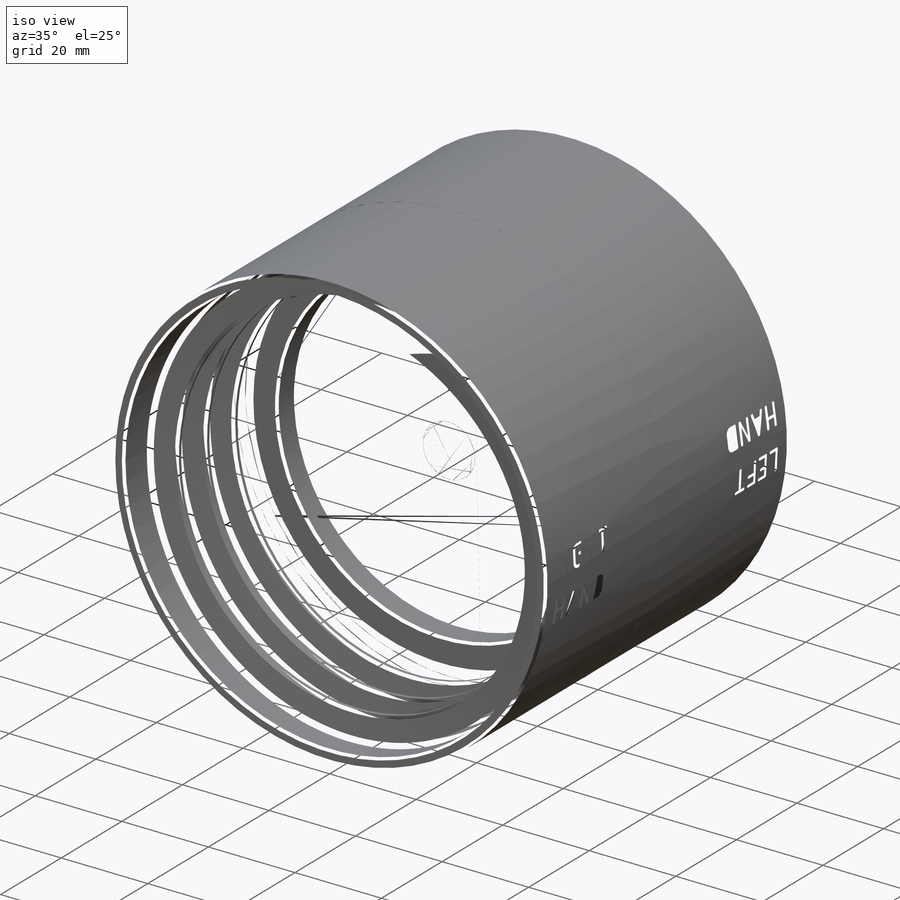
[diagram: iso view]
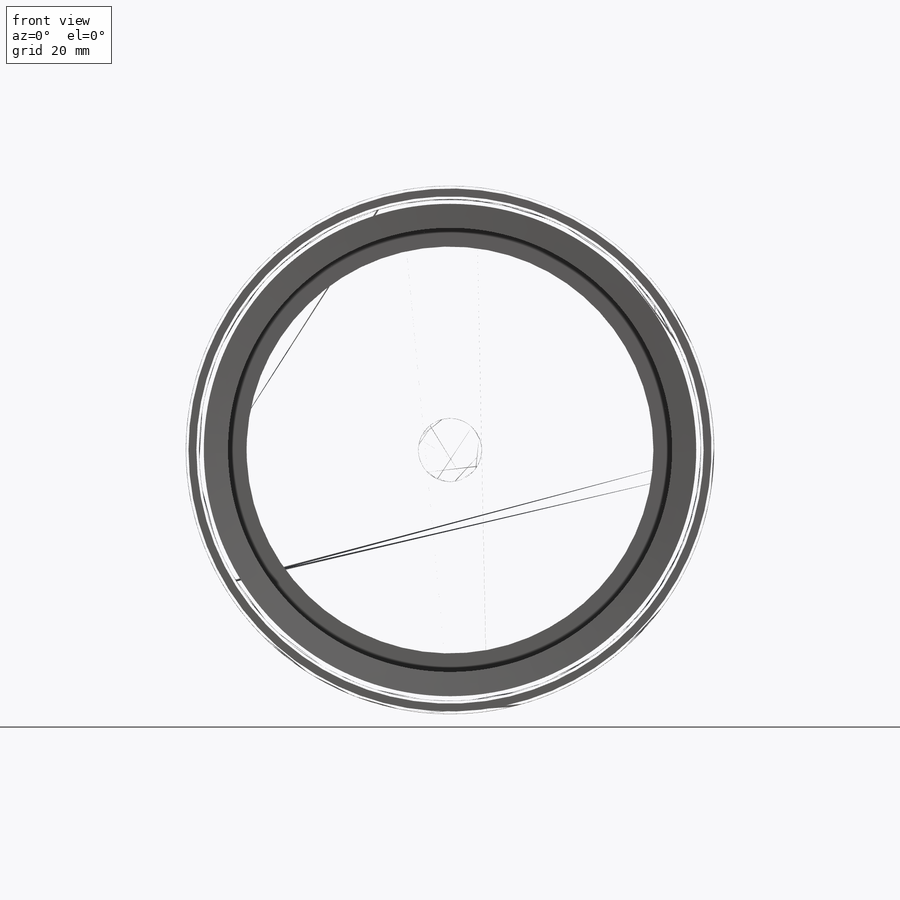
[diagram: front view]
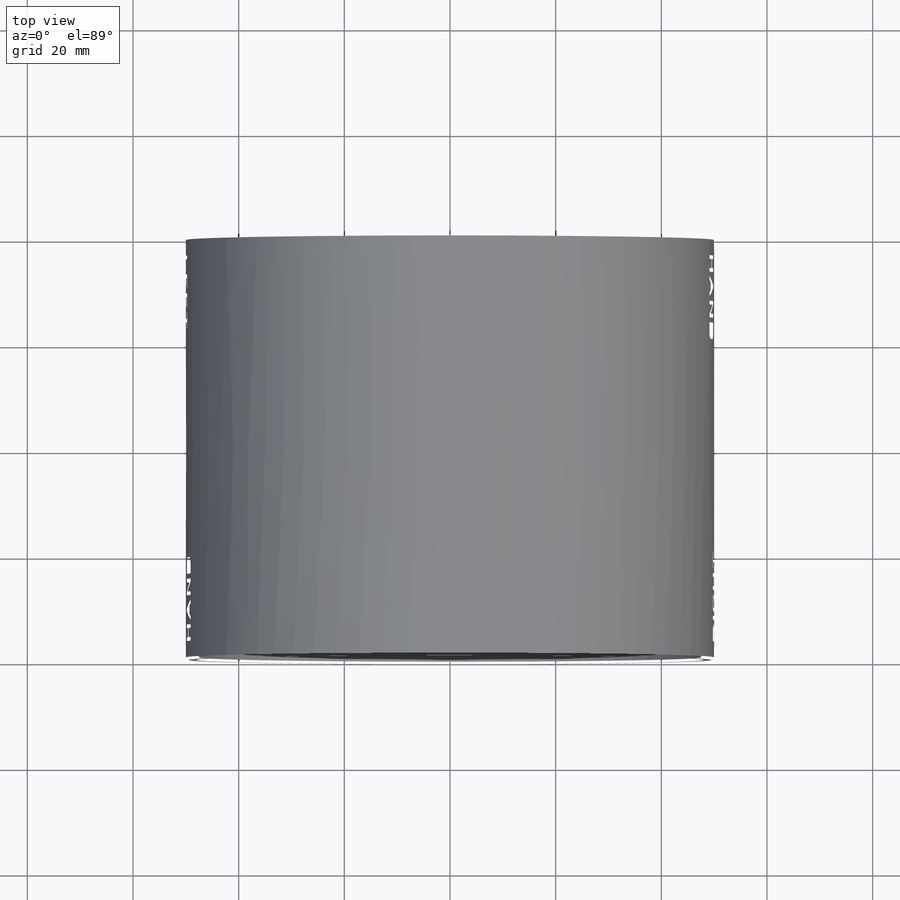
[diagram: top view]
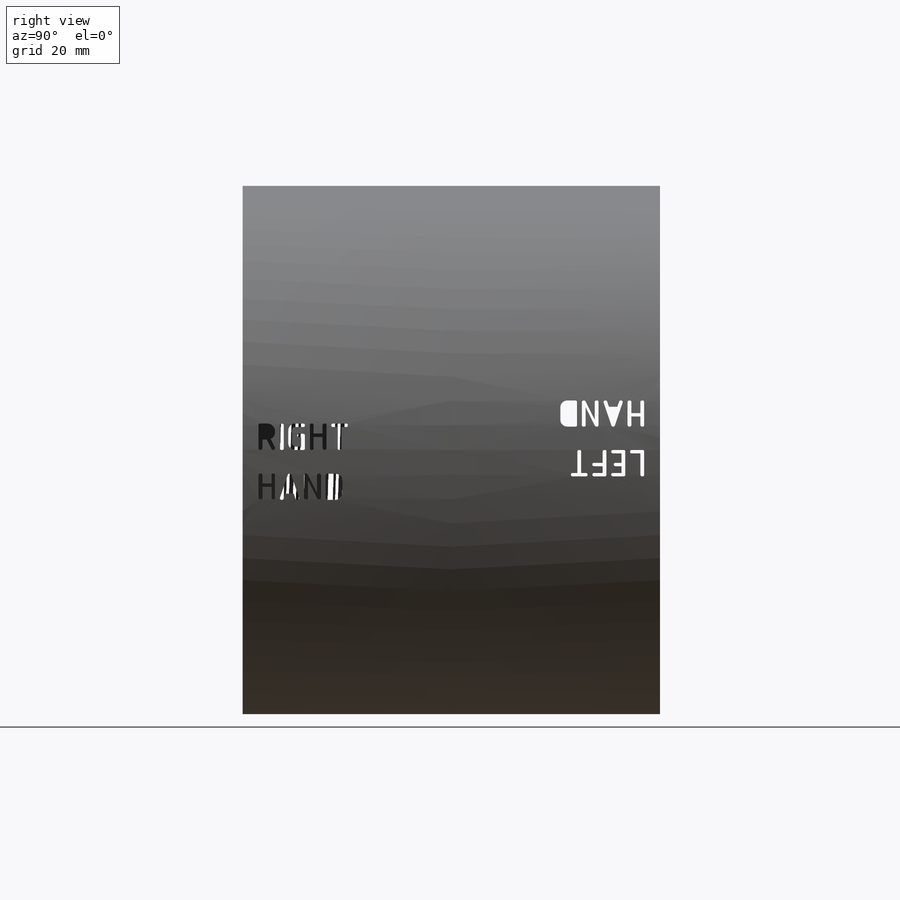
[diagram: right view]
SOLIDWORKS PART (.sldprt)
format: sldprt  version: not decoded by parser v0  size: 4,803,072 bytes
history: native  units: mm
features: sketch x8, plane x4, cut_extrude x4, chamfer x4, fillet x2, material x1, revolve x1, helix x1, sweep x1, mirror x1, pattern_circular x1 (+11 scaffold rows collapsed)
feature tree (39):
  scaffold x11  (default folders/planes/origin — collapsed)
  material  "ABS"
  sketch  "Sketch1"  dims[D1=40.0mm D2=3.0mm D3=76.0mm D4=100.0mm D5=95.0mm]
  revolve  "Revolve1"  Angle=360deg
  sketch  "Sketch3"  dims[c1.D1=4.0mm c1.D2=1.8mm c1.D3=3.0mm c2.D1=3.0mm c2.D4=83.0mm c2.D5=6.0mm]
  plane  "Plane1"
  sketch  "Sketch4"
  helix  "Helix/Spiral1"  Pitch=27.9mm
  sweep  "Sweep1"
  sketch  "Sketch5"  dims[c1.D1=~26.926099mm c2.D1=60.0deg c3.D1=~41.136207mm c4.D1=30.0deg]
  cut_extrude  "Cut-Extrude1"  [1 undecoded]
  sketch  "Sketch6"  dims[c1.D1=~28.285297mm c2.D1=30.0deg c3.D1=47.5mm c4.D1=30.0deg]
  cut_extrude  "Cut-Extrude2"  [1 undecoded]
  plane  "Plane2"
  sketch  "Sketch7"  dims[c1.D1=0.5mm c1.D2=~6.104994mm c2.D2=5.0deg]
  cut_extrude  "Cut-Extrude3"  [1 undecoded]
  plane  "Plane3"
  sketch  "Sketch8"  dims[c1.D1=~4.416185mm c2.D1=5.0deg c2.D2=0.5mm]
  cut_extrude  "Cut-Extrude4"  [1 undecoded]
  chamfer  "Chamfer1"  Distance=4mm Angle=45deg
  fillet  "Fillet2"  Radius=1mm
  chamfer  "Chamfer2"  Distance=0.5mm Angle=45deg
  chamfer  "Chamfer4"  Distance=0.5mm Angle=45deg
  fillet  "Fillet5"  Radius=10mm
  chamfer  "Chamfer5"  Distance=0.5mm Angle=45deg
  mirror  "Mirror1"
  plane  "Plane4"
  sketch  "Sketch9"  dims[c1.D1=3.0mm c2.D1=0.5mm]
  pattern_circular  "CirPattern1"  Count=2 Angle=360deg
decode coverage: 16 of 23 modeling features carry decoded parameters
note: ~ marks probable driven/reference dimensions
note: 4 parameter values undecoded
summary: no parameter record found for 4 features
note: suppression state not decoded; provenance and decode notes live in map.json
